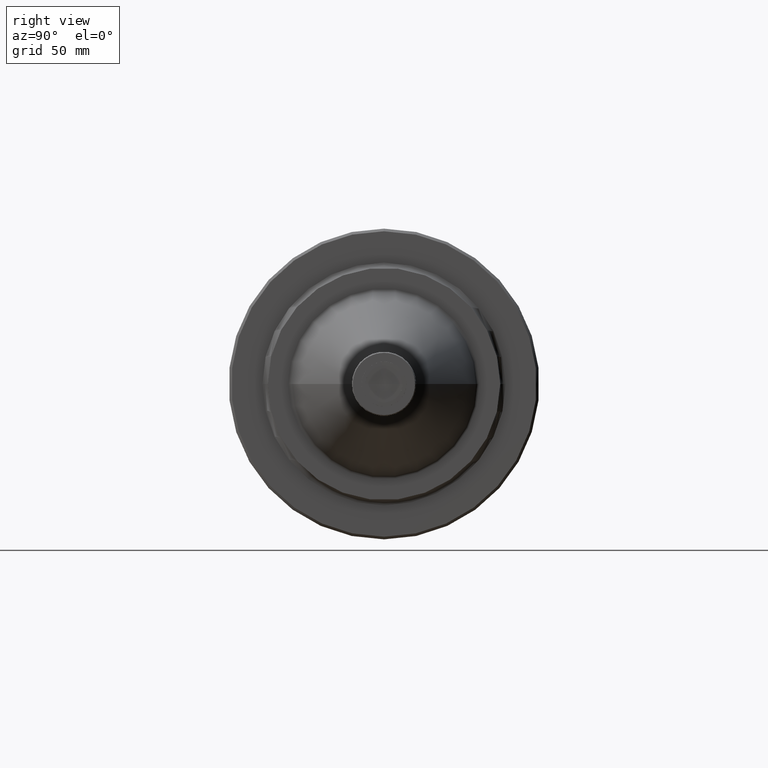
[diagram: clean part render]
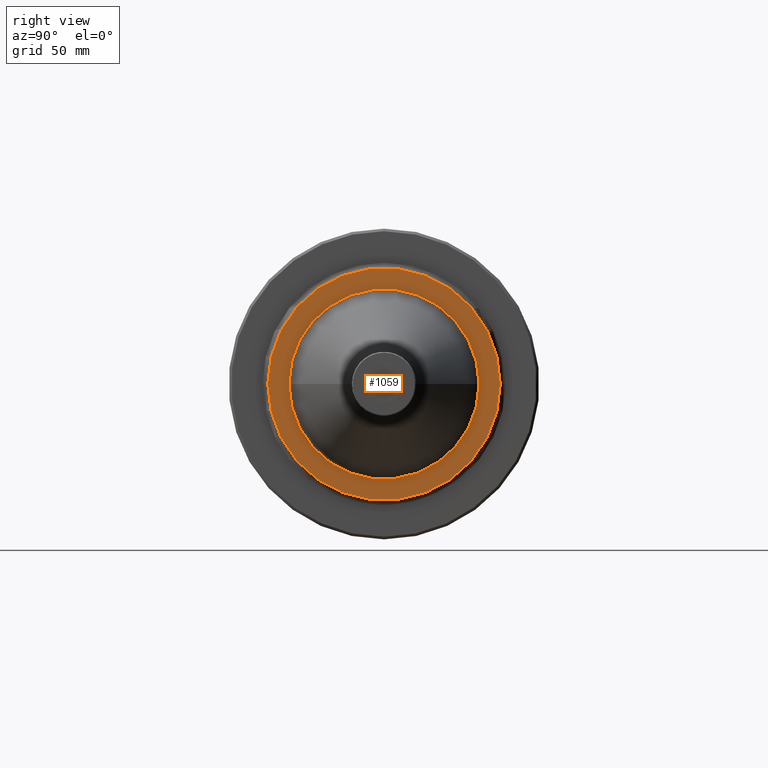
[diagram: same view with one face highlighted and labeled with its STEP entity id]
A machine part, right view. The second image highlights one B-rep face of the part: STEP entity #1059.
In plain terms, the highlighted planar face has unit normal (1, -0, -0).
Its self-contained STEP definition (entity closure, byte-faithful):
#281 = AXIS2_PLACEMENT_3D ( 'NONE', #531, #3999, #6368 ) ;
#447 = ORIENTED_EDGE ( 'NONE', *, *, #7152, .T. ) ;
#531 = CARTESIAN_POINT ( 'NONE',  ( 161.0389117158850400, 65.99999999999900500, -68.22315000000000400 ) ) ;
#634 = EDGE_LOOP ( 'NONE', ( #7439, #447 ) ) ;
#972 = CARTESIAN_POINT ( 'NONE',  ( 161.0389117158652000, 1.563353112879070700E-014, -68.22315000000000400 ) ) ;
#1059 = ADVANCED_FACE ( 'NONE', ( #4477, #6757 ), #4020, .T. ) ;
#1127 = AXIS2_PLACEMENT_3D ( 'NONE', #5113, #2276, #1633 ) ;
#1390 = AXIS2_PLACEMENT_3D ( 'NONE', #972, #5787, #6314 ) ;
#1633 = DIRECTION ( 'NONE',  ( 0.0000000000000000000, 1.000000000000000000, 0.0000000000000000000 ) ) ;
#1827 = DIRECTION ( 'NONE',  ( 0.0000000000000000000, 1.000000000000000000, 0.0000000000000000000 ) ) ;
#1889 = CARTESIAN_POINT ( 'NONE',  ( 161.0389117159048500, -53.99462723478001900, -68.22315000000000400 ) ) ;
#2133 = EDGE_LOOP ( 'NONE', ( #6432, #4311 ) ) ;
#2221 = DIRECTION ( 'NONE',  ( 1.000000000000000000, -8.492394904561674800E-017, -0.0000000000000000000 ) ) ;
#2276 = DIRECTION ( 'NONE',  ( 1.000000000000000000, -8.492394904561674800E-017, -0.0000000000000000000 ) ) ;
#2415 = CARTESIAN_POINT ( 'NONE',  ( 161.0389117159048500, 53.99462723478004700, -68.22315000000000400 ) ) ;
#2475 = VERTEX_POINT ( 'NONE', #7409 ) ;
#2808 = DIRECTION ( 'NONE',  ( 0.0000000000000000000, 1.000000000000000000, 0.0000000000000000000 ) ) ;
#3005 = CIRCLE ( 'NONE', #6797, 65.99999999999899100 ) ;
#3440 = CARTESIAN_POINT ( 'NONE',  ( 161.0389117159048500, 1.563353112878734000E-014, -68.22315000000000400 ) ) ;
#3571 = VERTEX_POINT ( 'NONE', #2415 ) ;
#3645 = CARTESIAN_POINT ( 'NONE',  ( 161.0389117158652000, 1.563353112879070700E-014, -68.22315000000000400 ) ) ;
#3999 = DIRECTION ( 'NONE',  ( 1.000000000000000000, -8.492394904561674800E-017, -0.0000000000000000000 ) ) ;
#4020 = PLANE ( 'NONE',  #281 ) ;
#4311 = ORIENTED_EDGE ( 'NONE', *, *, #4504, .F. ) ;
#4477 = FACE_OUTER_BOUND ( 'NONE', #634, .T. ) ;
#4502 = EDGE_CURVE ( 'NONE', #3571, #6860, #5563, .T. ) ;
#4504 = EDGE_CURVE ( 'NONE', #6860, #3571, #5369, .T. ) ;
#4793 = AXIS2_PLACEMENT_3D ( 'NONE', #3440, #2221, #2808 ) ;
#4833 = CARTESIAN_POINT ( 'NONE',  ( 161.0389117158652000, -65.99999999999897700, -68.22314999999999000 ) ) ;
#4878 = EDGE_CURVE ( 'NONE', #2475, #6356, #3005, .T. ) ;
#5113 = CARTESIAN_POINT ( 'NONE',  ( 161.0389117159048500, 1.563353112878734000E-014, -68.22315000000000400 ) ) ;
#5369 = CIRCLE ( 'NONE', #4793, 53.99462723474997000 ) ;
#5563 = CIRCLE ( 'NONE', #1127, 53.99462723474997000 ) ;
#5787 = DIRECTION ( 'NONE',  ( 1.000000000000000000, -8.492394904561674800E-017, -0.0000000000000000000 ) ) ;
#5941 = DIRECTION ( 'NONE',  ( 1.000000000000000000, -8.492394904561674800E-017, -0.0000000000000000000 ) ) ;
#6314 = DIRECTION ( 'NONE',  ( 0.0000000000000000000, 1.000000000000000000, 0.0000000000000000000 ) ) ;
#6356 = VERTEX_POINT ( 'NONE', #4833 ) ;
#6368 = DIRECTION ( 'NONE',  ( 8.492394904561674800E-017, 1.000000000000000000, 0.0000000000000000000 ) ) ;
#6432 = ORIENTED_EDGE ( 'NONE', *, *, #4502, .F. ) ;
#6607 = CIRCLE ( 'NONE', #1390, 65.99999999999899100 ) ;
#6757 = FACE_BOUND ( 'NONE', #2133, .T. ) ;
#6797 = AXIS2_PLACEMENT_3D ( 'NONE', #3645, #5941, #1827 ) ;
#6860 = VERTEX_POINT ( 'NONE', #1889 ) ;
#7152 = EDGE_CURVE ( 'NONE', #6356, #2475, #6607, .T. ) ;
#7409 = CARTESIAN_POINT ( 'NONE',  ( 161.0389117158652000, 65.99999999999900500, -68.22315000000000400 ) ) ;
#7439 = ORIENTED_EDGE ( 'NONE', *, *, #4878, .T. ) ;